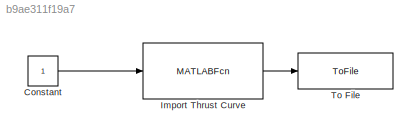
MODEL slx_b9ae311f19a7
KIND model
BLOCK [Constant] Constant
BLOCK [MATLABFcn] Import Thrust Curve
  MATLABFcn = thrust_data_import
  Ports = [1, 1]
BLOCK [ToFile] To File
  Filename = thrust_fuck.mat
  MatrixName = ThrustD
  Ports = [1]
LINE Constant:1 -> Import Thrust Curve:1
LINE Import Thrust Curve:1 -> To File:1
